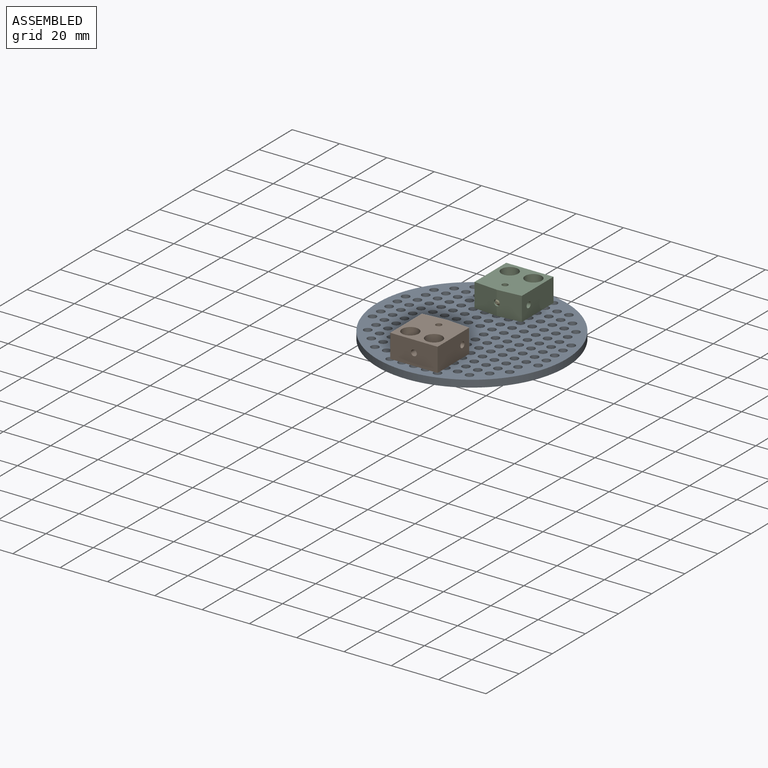
[diagram: assembled view]
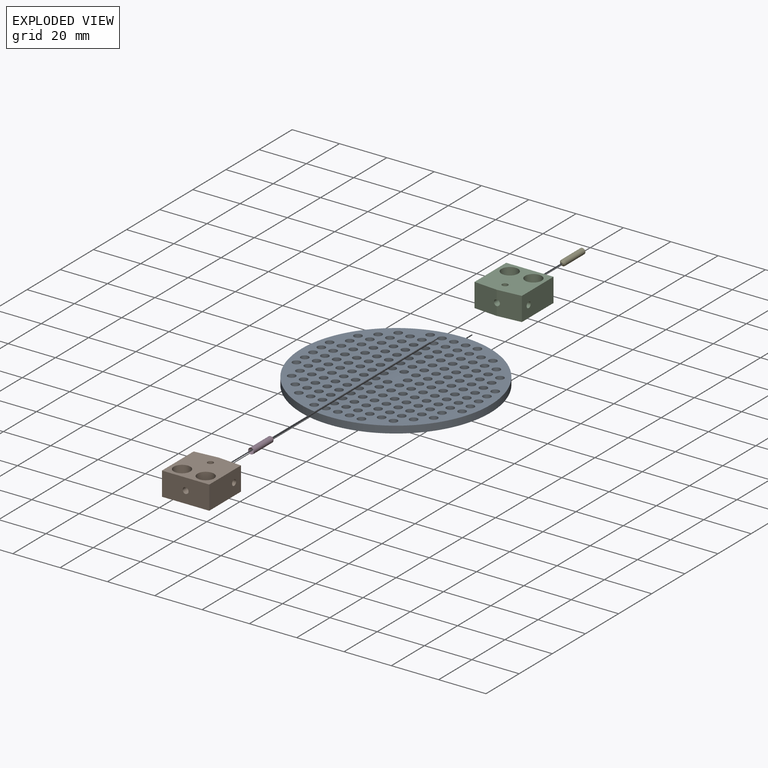
[diagram: exploded view]
GUIDED TOUR — FREECAD ASSEMBLY "PhilippsXL30_DipoleTrap"

This assembly has 5 components, labeled P0..P4 below (a component is one placed body or linked part; the same part can appear more than once), held together by 0 modeled joints plus 4 derived contact edges. A joint is a constraint between two components; its type names the relative motion it leaves free:
  CONTACT — a derived adjacency edge — the two components touch in the source model (clearance under 2% of the assembly's diagonal); it is measured from the geometry, not a modeled constraint.
Axis/direction vectors are unit vectors and 'through' points are millimeter coordinates, both in the assembly's world frame.

MATES
  1. CONTACT "contact_0_1": P0 <-> P1, contact direction (0.000, -1.000, 0.000) through (1.33, -19.44, 0.00) mm (derived from contact, not a modeled constraint)
  2. CONTACT "contact_0_2": P0 <-> P2, contact direction (0.000, 1.000, 0.000) through (-1.41, 19.71, 0.00) mm (derived from contact, not a modeled constraint)
  3. CONTACT "contact_1_3": P1 <-> P3, contact direction (0.000, 1.000, 0.000) through (1.09, -15.24, 5.00) mm (derived from contact, not a modeled constraint)
  4. CONTACT "contact_2_4": P2 <-> P4, contact direction (0.000, -1.000, 0.000) through (-1.09, 15.24, 5.05) mm (derived from contact, not a modeled constraint)

ASSEMBLY ORDER
  1. P2 — the base component [order verified]
  2. P4 [order verified]
  3. P0 [order verified]
  4. P3 [order verified]
  5. P1 [order verified]
(P3, P4 verified with a relaxed clearance tolerance: the source model stores slight part interference there.)
Order-tag legend:
  [order verified] — this step's position reverses a verified removal order: the component was checked to insert without passing through the ones already placed.

Of the 5 components, 3 carry a construction recipe — the FreeCAD feature program (sketches with constraints, then the solid features that consume them) that regenerates the part from scratch, quoted from this document or from the linked companion document it references; the rest are supplied as boundary geometry only. The tour below walks the components in assembly order: each is shown spotlighted twice — in the assembled view, then in the exploded view, where a leader line traces a displaced component back to its assembled socket (components that stay in place when exploded have no leader line; saturated green if recipe-attached, orange if geometry-only; every other component desaturated gray) — followed by its recipe or geometry summary and the mates that hold it.
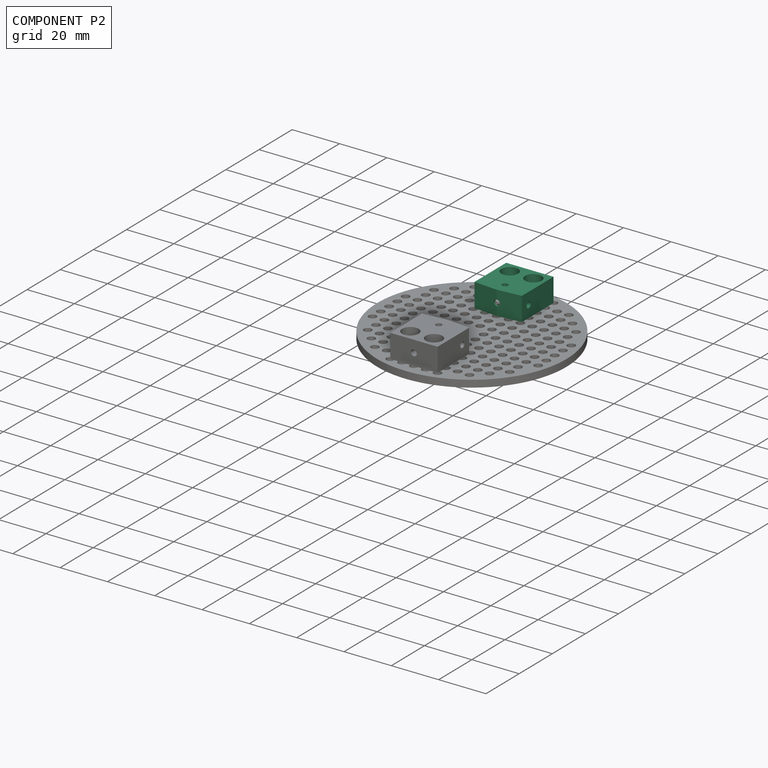
[diagram: component P2 — assembled]
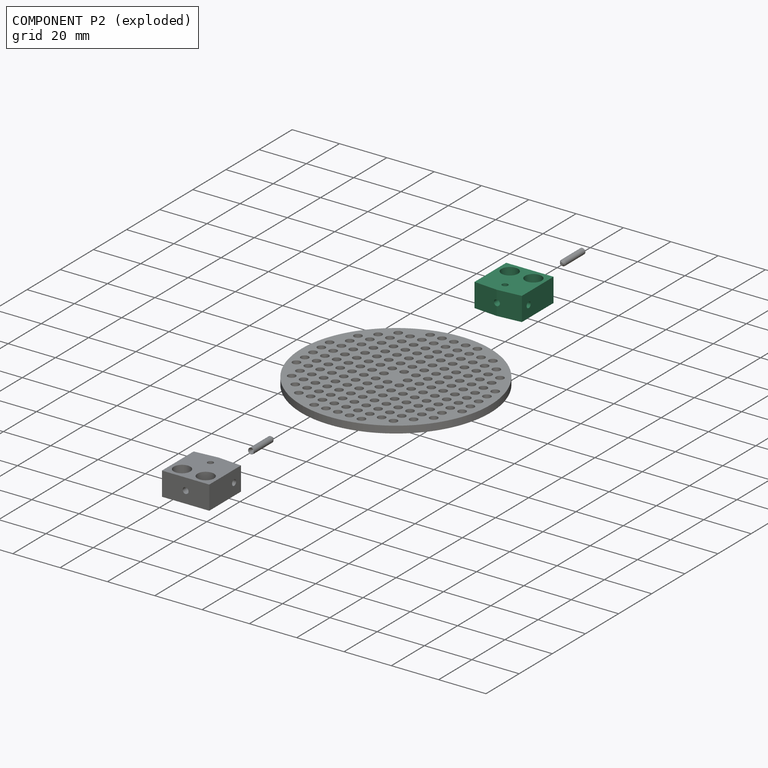
[diagram: component P2 — exploded]
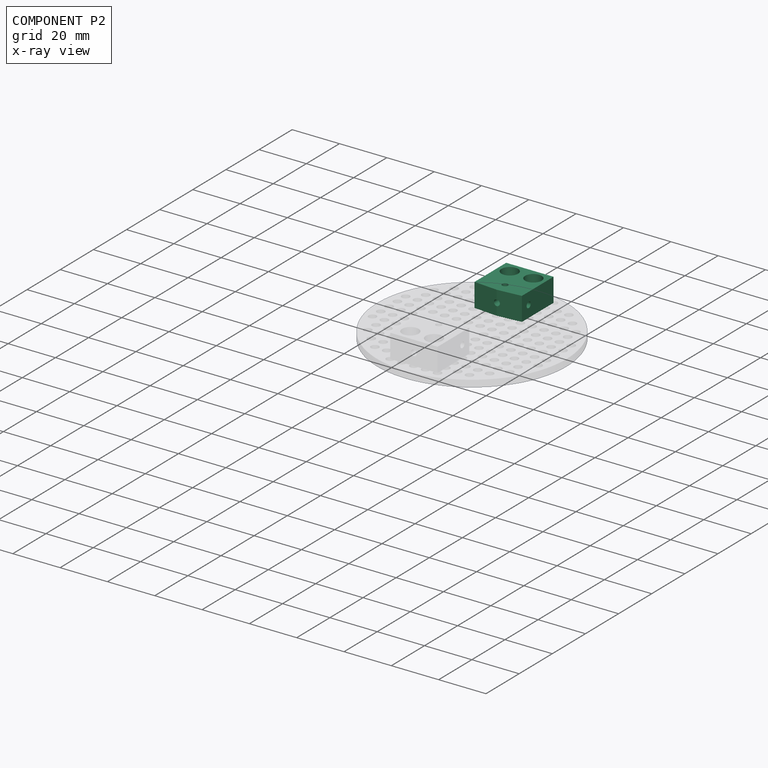
[diagram: component P2 — x-ray view]
COMPONENT P2 — same part as P1; its construction recipe is shown at P1.
Held by: resting contact with P0 (derived edge); resting contact with P4 (derived edge).
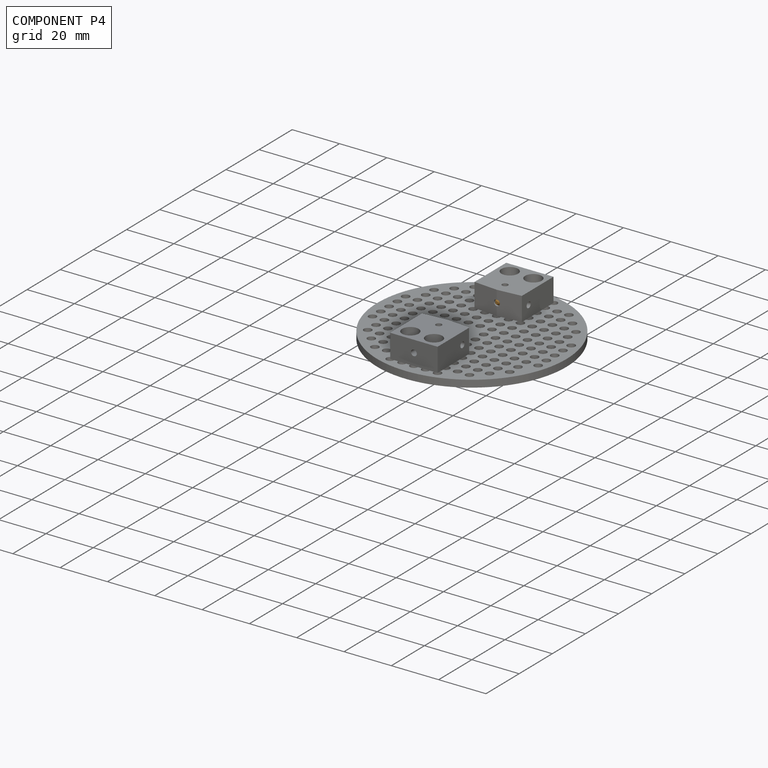
[diagram: component P4 — assembled]
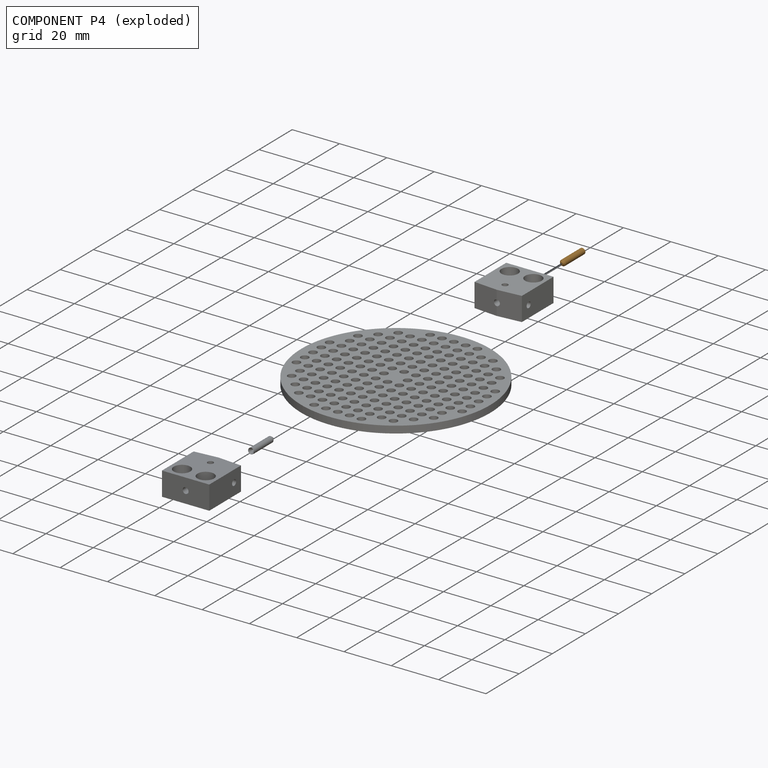
[diagram: component P4 — exploded]
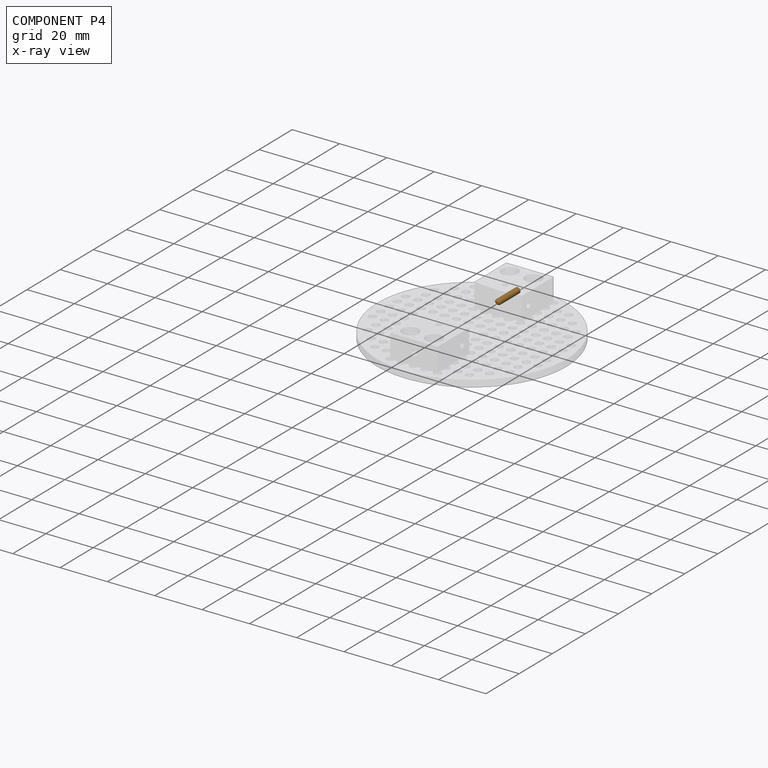
[diagram: component P4 — x-ray view]
COMPONENT P4 — geometry summary ("FiberFerrule001"; no construction recipe available for this part):
  bounding box: 12.7 x 2.5 x 2.5 mm
  tessellated surface: 2,236 triangles
  volume: 56 mm^3 (70% of its bounding box)
  symmetry: revolution-symmetric about the y axis through its bounding-box center; mirror-symmetric across its x mid-plane
Held by: resting contact with P2 (derived edge).
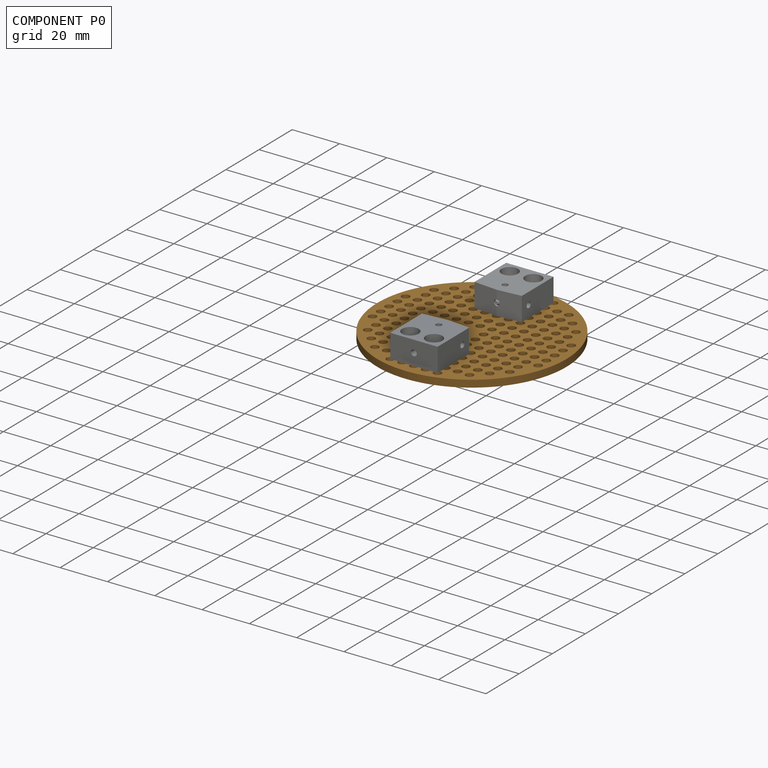
[diagram: component P0 — assembled]
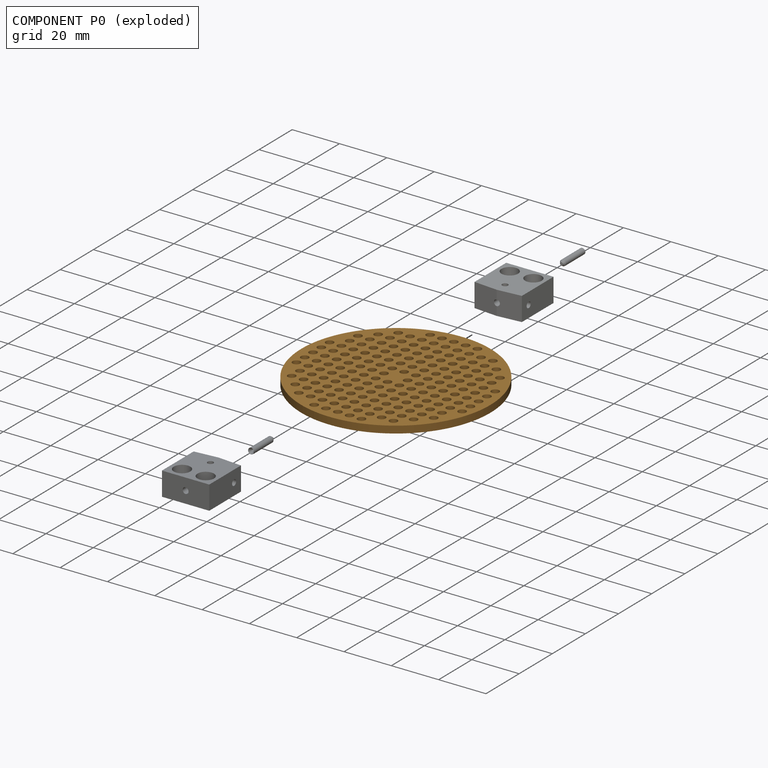
[diagram: component P0 — exploded]
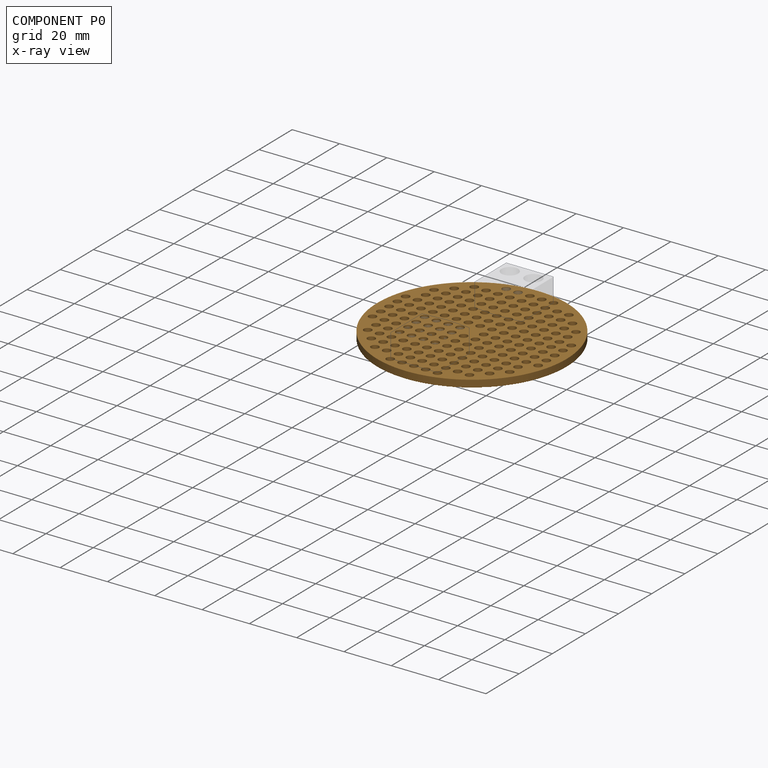
[diagram: component P0 — x-ray view]
COMPONENT P0 — geometry summary ("Breadboard"; no construction recipe available for this part):
  bounding box: 80.0 x 80.0 x 10.0 mm
  tessellated surface: 90,412 triangles
  volume: 10652 mm^3 (17% of its bounding box)
  symmetry: 4-fold rotationally symmetric about the z axis; mirror-symmetric across its x mid-plane, y mid-plane
Held by: resting contact with P1 (derived edge); resting contact with P2 (derived edge).
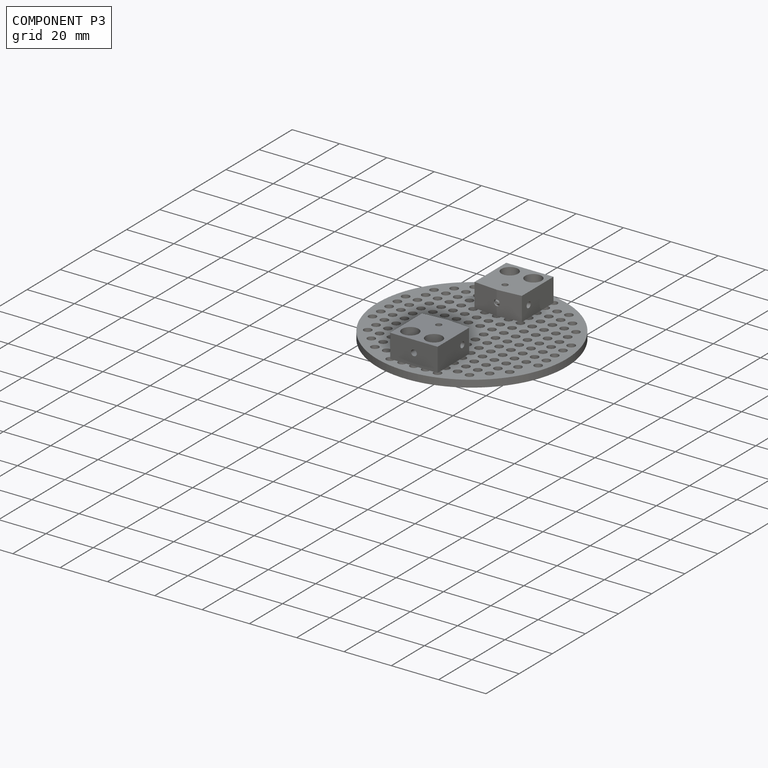
[diagram: component P3 — assembled]
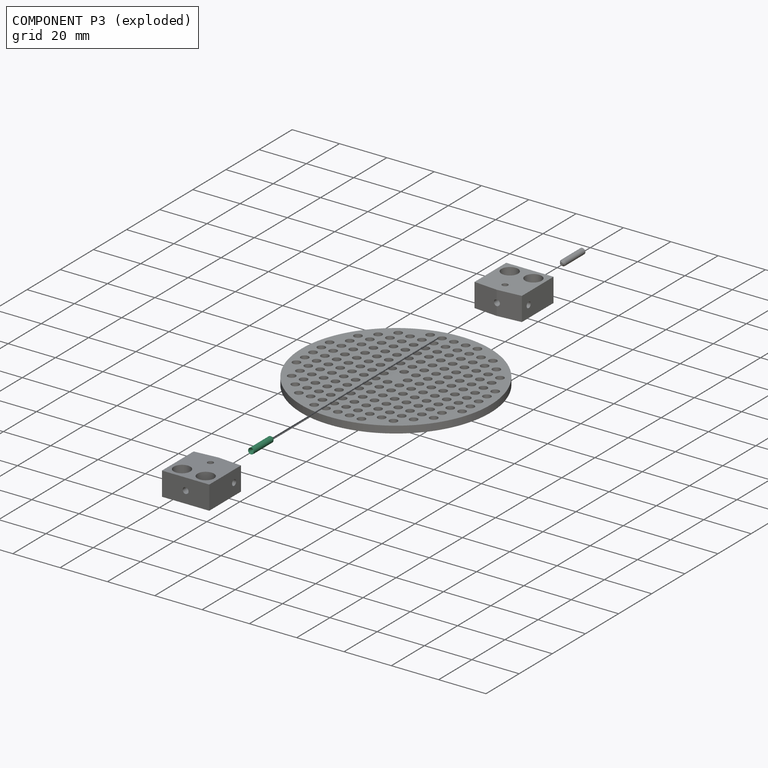
[diagram: component P3 — exploded]
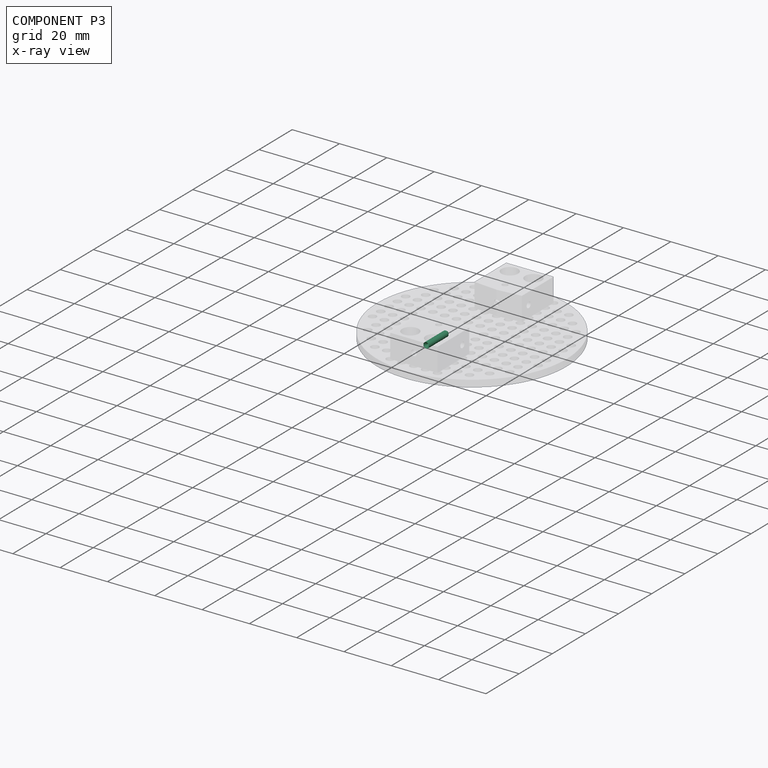
[diagram: component P3 — x-ray view]
COMPONENT P3 — recipe-attached ("FiberFerrule", a linked part whose construction recipe lives in a companion FreeCAD document of the same project; that document's serialized recipe follows).
Held by: resting contact with P1 (derived edge).
Construction recipe (the companion document, serialized — sketch geometry with constraints, then the solid features built on it; lengths are millimeters unless a unit is written):

FCSTD DOCUMENT  (FreeCAD 0.21R0.21.2)
Label: FiberFerruleParameterized
License: All rights reserved
LicenseURL: https://en.wikipedia.org/wiki/All_rights_reserved
objects: Part::Cylinder×2, Part::Cone×2, Part::MultiFuse×2, Spreadsheet::Sheet×1, Part::Cut×1
note: 7 computed .brp shape members not serialized (recipe doc carries the construction recipe); baked Part::Feature solids carry a one-line shape summary decoded from their .brp

FEATURE [Spreadsheet::Sheet] Spreadsheet  label="FerruleConfig"
  cells = A2='Ferrule OD; B2(ferrule_od)=2.5; C2='outer diameter; D2='typ. 2.5mm or 1.25mm; A3='Ferrule ID; B3(ferrule_id)=0.44; C3='Inner diameter; D3='typ. 440 um / 125um / 231 um; A4='Ferrule Length; B4(ferrule_length)=12.7; C4='Ferrule length; D4='typ 12.7mm / 10.5mm; A5='Front angle; B5(ferrule_front_angle)=35; C5='Angle on front; D5='typ 35 deg; A6='Back angle; B6(ferrule_back_angle)=35; C6='Angle on back; D6='typ 35 deg
FEATURE [Part::Cylinder] Cylinder
  Angle = 360
  AttacherType = Attacher::AttachEngine3D
  FirstAngle = 0
  Height = 11.7717
  Placement = pos=(0,0,0.928296) rot=(0,0,1;0rad)
  Radius = 1.25
  SecondAngle = 0
  expr: .Placement.Base.z = (<<FerruleConfig>>.ferrule_od - 1.2) / (2 * tan(<<FerruleConfig>>.ferrule_front_angle))
  expr: Height = <<FerruleConfig>>.ferrule_length - (<<FerruleConfig>>.ferrule_od - 1.2) / (2 * tan(<<FerruleConfig>>.ferrule_front_angle))
  expr: Radius = <<FerruleConfig>>.ferrule_od / 2
FEATURE [Part::Cylinder] Cylinder001
  Angle = 360
  AttacherType = Attacher::AttachEngine3D
  FirstAngle = 0
  Height = 12.7
  Radius = 0.22
  SecondAngle = 0
  expr: Height = <<FerruleConfig>>.ferrule_length
  expr: Radius = <<FerruleConfig>>.ferrule_id / 2
FEATURE [Part::Cone] Cone
  Angle = 360
  AttacherType = Attacher::AttachEngine3D
  Height = 0.928296
  Radius1 = 0.6
  Radius2 = 1.25
  expr: Height = (<<FerruleConfig>>.ferrule_od - 1.2) / (2 * tan(<<FerruleConfig>>.ferrule_front_angle))
  expr: Radius2 = <<FerruleConfig>>.ferrule_od / 2
FEATURE [Part::MultiFuse] Fusion
  Shapes = -> [Cylinder,Cone]
FEATURE [Part::Cone] Cone001
  Angle = 360
  AttacherType = Attacher::AttachEngine3D
  Height = 1.47099
  Placement = pos=(0,0,11.229) rot=(0,0,1;0rad)
  Radius1 = 0.22
  Radius2 = 1.25
  expr: .Placement.Base.z = <<FerruleConfig>>.ferrule_length - (<<FerruleConfig>>.ferrule_od - <<FerruleConfig>>.ferrule_id) / (2 * tan(<<FerruleConfig>>.ferrule_back_angle))
  expr: Height = (<<FerruleConfig>>.ferrule_od - <<FerruleConfig>>.ferrule_id) / (2 * tan(<<FerruleConfig>>.ferrule_back_angle))
  expr: Radius1 = <<FerruleConfig>>.ferrule_id / 2
  expr: Radius2 = <<FerruleConfig>>.ferrule_od / 2
FEATURE [Part::MultiFuse] Fusion001
  Shapes = -> [Cylinder001,Cone001]
FEATURE [Part::Cut] Cut  label="FiberFerrule"
  Base = -> Fusion
  Tool = -> Fusion001
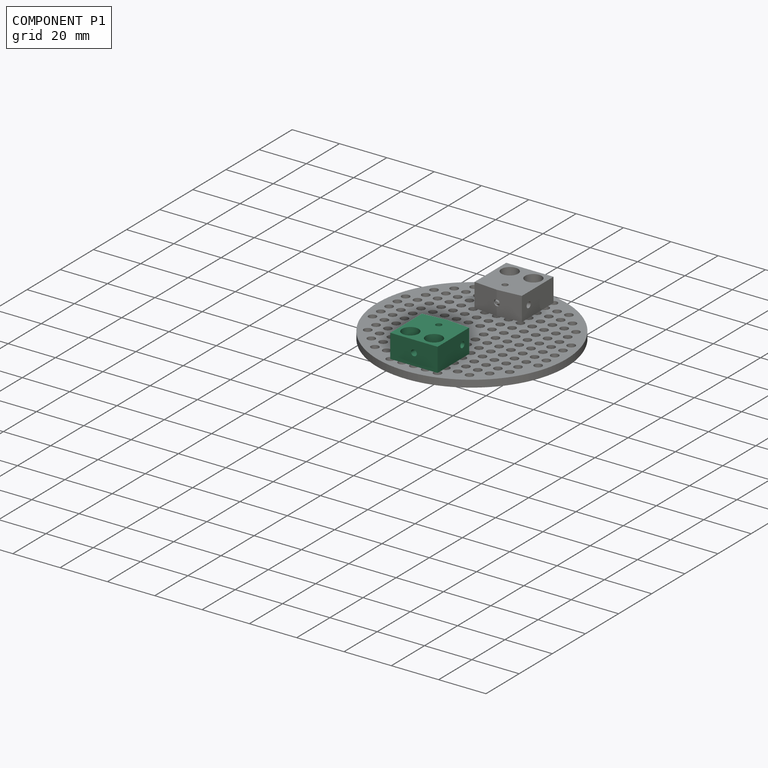
[diagram: component P1 — assembled]
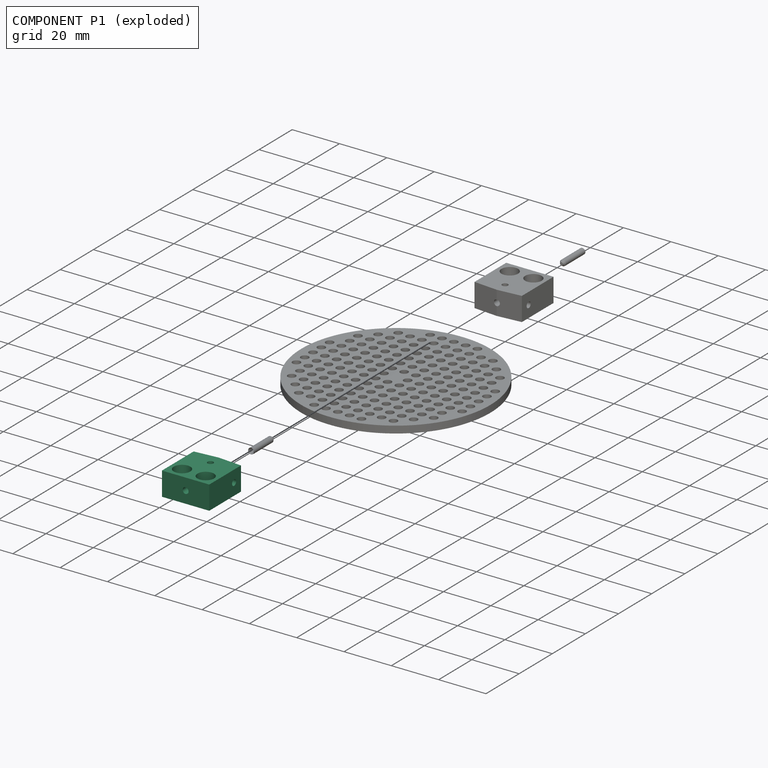
[diagram: component P1 — exploded]
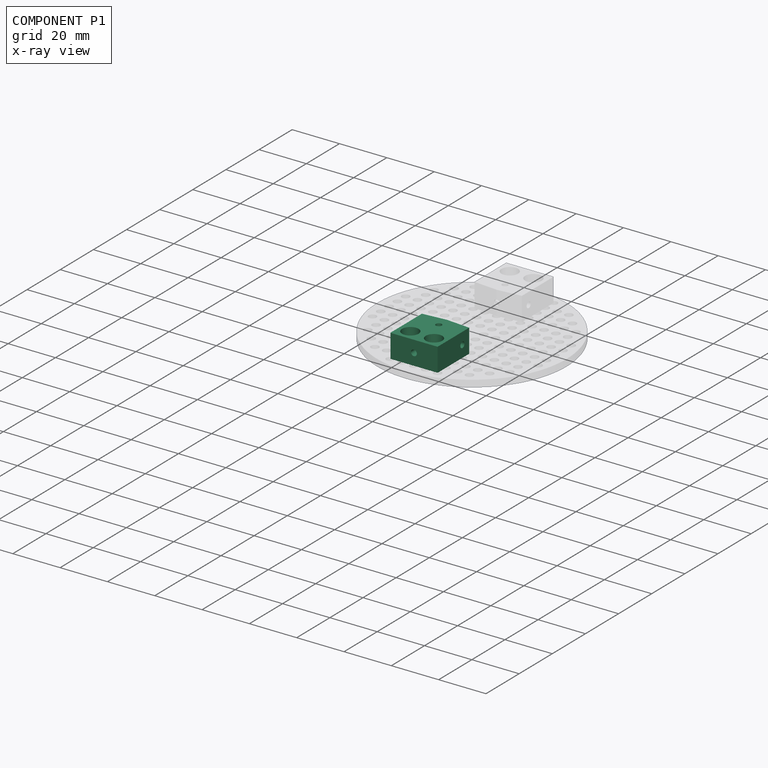
[diagram: component P1 — x-ray view]
COMPONENT P1 — recipe-attached ("FiberMount", a linked part whose construction recipe lives in a companion FreeCAD document of the same project; that document's serialized recipe follows).
Held by: resting contact with P0 (derived edge); resting contact with P3 (derived edge).
Construction recipe (the companion document, serialized — sketch geometry with constraints, then the solid features built on it; lengths are millimeters unless a unit is written):

FCSTD DOCUMENT  (FreeCAD 0.21R0.21.2)
Label: StaticFiberFerruleMount_M4
License: All rights reserved
LicenseURL: https://en.wikipedia.org/wiki/All_rights_reserved
objects: TechDraw::DrawViewDimension×23, Part::Cylinder×5, Part::Cut×5, TechDraw::DrawProjGroupItem×5, Part::MultiFuse×4, Part::Box×3, TechDraw::DrawViewPart×3, TechDraw::DrawViewSection×3, Part::FeaturePython×2, TechDraw::DrawSVGTemplate×2, TechDraw::DrawPage×2, Part::Compound×1, TechDraw::DrawProjGroup×1
note: 56 computed .brp shape members not serialized (recipe doc carries the construction recipe); baked Part::Feature solids carry a one-line shape summary decoded from their .brp

FEATURE [Part::Box] Box  label="Cube"
  AttacherType = Attacher::AttachEngine3D
  Height = 10
  Length = 20
  Placement = pos=(-10,0,0) rot=(0,0,1;0rad)
  Width = 20
FEATURE [Part::Cylinder] Cylinder
  Angle = 360
  AttacherType = Attacher::AttachEngine3D
  FirstAngle = 0
  Height = 4
  Placement = pos=(0,0,6) rot=(0,0,1;0rad)
  Radius = 3.5
  SecondAngle = 0
FEATURE [Part::Cylinder] Cylinder001
  Angle = 360
  AttacherType = Attacher::AttachEngine3D
  FirstAngle = 0
  Height = 10
  Radius = 2.15
  SecondAngle = 0
FEATURE [Part::MultiFuse] Fusion
  Placement = pos=(-5,5,0) rot=(0,0,1;0rad)
  Shapes = -> [Cylinder001,Cylinder]
FEATURE [Part::Cylinder] Cylinder002
  Angle = 360
  AttacherType = Attacher::AttachEngine3D
  FirstAngle = 0
  Height = 4
  Placement = pos=(0,0,6) rot=(0,0,1;0rad)
  Radius = 3.5
  SecondAngle = 0
FEATURE [Part::Cylinder] Cylinder003
  Angle = 360
  AttacherType = Attacher::AttachEngine3D
  FirstAngle = 0
  Height = 10
  Radius = 2.15
  SecondAngle = 0
FEATURE [Part::MultiFuse] Fusion001
  Placement = pos=(5,5,0) rot=(0,0,1;0rad)
  Shapes = -> [Cylinder003,Cylinder002]
FEATURE [Part::MultiFuse] Fusion002
  Shapes = -> [Fusion,Fusion001]
FEATURE [Part::Cut] Cut
  Base = -> Box
  Tool = -> Fusion002
FEATURE [Part::Cylinder] Cylinder004
  Angle = 360
  AttacherType = Attacher::AttachEngine3D
  FirstAngle = 0
  Height = 20
  Placement = pos=(0,0,5) rot=(1,0,0;-1.5708rad)
  Radius = 1.25
  SecondAngle = 0
FEATURE [Part::Cut] Cut001
  Base = -> Cut
  Tool = -> Cylinder004
FEATURE [Part::FeaturePython] ScrewTap  label="M3x20-ScrewTap"  # Fasteners workbench fastener (typed FeaturePython)
  Placement = pos=(10,15,5) rot=(0,1,0;1.5708rad)
  diameter = 4
  diameterCustom = 20
  invert = false
  leftHanded = false
  length = 20
  matchOuter = false
  offset = 0
  pitchCustom = 1
  thread = false
  type = 2
FEATURE [Part::FeaturePython] ScrewTap001  label="M3x20-ScrewTap001"  # Fasteners workbench fastener (typed FeaturePython)
  Placement = pos=(0,15,15) rot=(0,1,0;0rad)
  diameter = 4
  diameterCustom = 20
  invert = false
  leftHanded = false
  length = 20
  matchOuter = false
  offset = 0
  pitchCustom = 1
  thread = false
  type = 2
FEATURE [Part::Cut] Cut002
  Base = -> Cut001
  Tool = -> ScrewTap
FEATURE [Part::Cut] Cut003
  Base = -> Cut002
  Tool = -> ScrewTap001
FEATURE [Part::Box] Box001  label="Cube001"
  AttacherType = Attacher::AttachEngine3D
  Height = 10
  Length = 15
  Placement = pos=(0,20,0) rot=(0,0,1;-0.087266rad)
  Width = 5
FEATURE [Part::Box] Box002  label="Cube002"
  AttacherType = Attacher::AttachEngine3D
  Height = 10
  Length = 15
  Placement = pos=(0,20,0) rot=(0,0,-1;0.087266rad)
  Width = 5
FEATURE [Part::Compound] Compound
  Links = -> [Box002]
  Placement = pos=(0,0,10) rot=(0,1,0;3.14159rad)
FEATURE [Part::MultiFuse] Fusion003
  Shapes = -> [Compound,Box001]
FEATURE [Part::Cut] Cut004  label="FiberMount"
  Base = -> Cut003
  Tool = -> Fusion003
FEATURE [TechDraw::DrawSVGTemplate] Template
  EditableTexts = Designed_by_Name=Thomas Spielauer; FC-Date=2024-01-30; FC-SC=mm; FC-Title=M4 Fiber Mount; Subtitle=For 2.5mm Ferrules
  Height = 210
  Orientation = 1
  Template = <path>
  Width = 297
FEATURE [TechDraw::DrawProjGroupItem] ProjItem  label="Front"
  CoarseView = false
  Direction = (0,0,1)
  Focus = 100
  HardHidden = false
  IsoCount = 0
  IsoHidden = false
  IsoVisible = false
  LockPosition = true
  Perspective = false
  Rotation = 0
  RotationVector = (-1,0,0)
  Scale = 2.5
  ScaleType = 2
  ScrubCount = 0
  SeamHidden = false
  SeamVisible = false
  SmoothHidden = false
  SmoothVisible = true
  Source = -> [Cut004]
  Type = 0
  X = 0
  XDirection = (-1,0,0)
  Y = 0
FEATURE [TechDraw::DrawProjGroupItem] ProjItem001  label="Left"
  CoarseView = false
  Direction = (1,0,1e-16)
  Focus = 100
  HardHidden = false
  IsoCount = 0
  IsoHidden = false
  IsoVisible = false
  LockPosition = false
  Perspective = false
  Rotation = 0
  RotationVector = (1,0,0)
  Scale = 2.5
  ScaleType = 2
  ScrubCount = 0
  SeamHidden = false
  SeamVisible = false
  SmoothHidden = false
  SmoothVisible = true
  Source = -> [Cut004]
  Type = 1
  X = 83.8051
  XDirection = (-1e-16,0,1)
  Y = 0
FEATURE [TechDraw::DrawProjGroupItem] ProjItem002  label="Rear"
  CoarseView = false
  Direction = (0,0,-1)
  Focus = 100
  HardHidden = false
  IsoCount = 0
  IsoHidden = false
  IsoVisible = false
  LockPosition = false
  Perspective = false
  Rotation = 0
  RotationVector = (1,0,0)
  Scale = 2.5
  ScaleType = 2
  ScrubCount = 0
  SeamHidden = false
  SeamVisible = false
  SmoothHidden = false
  SmoothVisible = true
  Source = -> [Cut004]
  Type = 3
  X = 176.998
  XDirection = (1,0,0)
  Y = 0
FEATURE [TechDraw::DrawProjGroupItem] ProjItem003  label="Top"
  CoarseView = false
  Direction = (0,-1,0)
  Focus = 100
  HardHidden = false
  IsoCount = 0
  IsoHidden = false
  IsoVisible = false
  LockPosition = false
  Perspective = false
  Rotation = 0
  RotationVector = (1,0,0)
  Scale = 2.5
  ScaleType = 2
  ScrubCount = 0
  SeamHidden = false
  SeamVisible = false
  SmoothHidden = false
  SmoothVisible = true
  Source = -> [Cut004]
  Type = 4
  X = 0
  XDirection = (-1,0,0)
  Y = -69.8299
FEATURE [TechDraw::DrawProjGroupItem] ProjItem004  label="Bottom"
  CoarseView = false
  Direction = (0,1,0)
  Focus = 100
  HardHidden = false
  IsoCount = 0
  IsoHidden = false
  IsoVisible = false
  LockPosition = false
  Perspective = false
  Rotation = 0
  RotationVector = (1,0,0)
  Scale = 2.5
  ScaleType = 2
  ScrubCount = 0
  SeamHidden = false
  SeamVisible = false
  SmoothHidden = false
  SmoothVisible = true
  Source = -> [Cut004]
  Type = 5
  X = 0
  XDirection = (-1,0,0)
  Y = 66.0072
FEATURE [TechDraw::DrawProjGroup] ProjGroup
  Anchor = -> ProjItem
  AutoDistribute = false
  LockPosition = false
  ProjectionType = 0
  Rotation = 0
  Scale = 2.5
  ScaleType = 2
  Source = -> [Cut004]
  Views = -> [ProjItem,ProjItem001,ProjItem002,ProjItem003,ProjItem004]
  X = 63.5172
  Y = 109.729
  spacingX = 15
  spacingY = 15
FEATURE [TechDraw::DrawViewDimension] Dimension
  AngleOverride = false
  Arbitrary = false
  ArbitraryTolerances = false
  EqualTolerance = true
  ExtensionAngle = 0
  FormatSpec = %.2w
  FormatSpecOverTolerance = %+.2w
  FormatSpecUnderTolerance = %+.2w
  Inverted = false
  LineAngle = 0
  LockPosition = false
  MeasureType = 1
  OverTolerance = 0
  References2D = -> [ProjItem002]
  Rotation = 0
  ScaleType = 0
  TheoreticalExact = false
  Type = 1
  UnderTolerance = 0
  X = -1.08718
  Y = 38.276
FEATURE [TechDraw::DrawViewDimension] Dimension001
  AngleOverride = false
  Arbitrary = false
  ArbitraryTolerances = false
  EqualTolerance = true
  ExtensionAngle = 0
  FormatSpec = %.2w
  FormatSpecOverTolerance = %+.2w
  FormatSpecUnderTolerance = %+.2w
  Inverted = false
  LineAngle = 0
  LockPosition = false
  MeasureType = 1
  OverTolerance = 0
  References2D = -> [ProjItem002]
  Rotation = 0
  ScaleType = 0
  TheoreticalExact = false
  Type = 2
  UnderTolerance = 0
  X = 33.6541
  Y = 3.92646
FEATURE [TechDraw::DrawViewDimension] Dimension002
  AngleOverride = false
  Arbitrary = false
  ArbitraryTolerances = false
  EqualTolerance = true
  ExtensionAngle = 0
  FormatSpec = %.2w
  FormatSpecOverTolerance = %+.2w
  FormatSpecUnderTolerance = %+.2w
  Inverted = false
  LineAngle = 0
  LockPosition = false
  MeasureType = 1
  OverTolerance = 0
  References2D = -> [ProjItem002]
  Rotation = 0
  ScaleType = 0
  TheoreticalExact = false
  Type = 1
  UnderTolerance = 0
  X = -19.3984
  Y = 49.6787
FEATURE [TechDraw::DrawViewDimension] Dimension003
  AngleOverride = false
  Arbitrary = false
  ArbitraryTolerances = false
  EqualTolerance = true
  ExtensionAngle = 0
  FormatSpec = %.2w
  FormatSpecOverTolerance = %+.2w
  FormatSpecUnderTolerance = %+.2w
  Inverted = false
  LineAngle = 0
  LockPosition = false
  MeasureType = 1
  OverTolerance = 0
  References2D = -> [ProjItem002]
  Rotation = 0
  ScaleType = 0
  TheoreticalExact = false
  Type = 1
  UnderTolerance = 0
  X = 18.4123
  Y = 48.3541
FEATURE [TechDraw::DrawViewDimension] Dimension004
  AngleOverride = false
  Arbitrary = false
  ArbitraryTolerances = false
  EqualTolerance = true
  ExtensionAngle = 0
  FormatSpec = %.2w
  FormatSpecOverTolerance = %+.2w
  FormatSpecUnderTolerance = %+.2w
  Inverted = false
  LineAngle = 0
  LockPosition = false
  MeasureType = 1
  OverTolerance = 0
  References2D = -> [ProjItem002]
  Rotation = 0
  ScaleType = 0
  TheoreticalExact = false
  Type = 2
  UnderTolerance = 0
  X = -36.9072
  Y = 21.9842
FEATURE [TechDraw::DrawViewDimension] Dimension005
  AngleOverride = false
  Arbitrary = false
  ArbitraryTolerances = false
  EqualTolerance = true
  ExtensionAngle = 0
  FormatSpec = %.2w
  FormatSpecOverTolerance = %+.2w
  FormatSpecUnderTolerance = %+.2w
  Inverted = false
  LineAngle = 0
  LockPosition = false
  MeasureType = 1
  OverTolerance = 0
  References2D = -> [ProjItem002]
  Rotation = 0
  ScaleType = 0
  TheoreticalExact = false
  Type = 2
  UnderTolerance = 0
  X = -49.4824
  Y = 5.98178
FEATURE [TechDraw::DrawViewDimension] Dimension006
  AngleOverride = false
  Arbitrary = false
  ArbitraryTolerances = false
  EqualTolerance = true
  ExtensionAngle = 0
  FormatSpec = %.2w
  FormatSpecOverTolerance = %+.2w
  FormatSpecUnderTolerance = %+.2w
  Inverted = false
  LineAngle = 0
  LockPosition = false
  MeasureType = 1
  OverTolerance = 0
  References2D = -> [ProjItem001]
  Rotation = 0
  ScaleType = 0
  TheoreticalExact = false
  Type = 2
  UnderTolerance = 0
  X = 20.9282
  Y = -0.08017
FEATURE [TechDraw::DrawViewDimension] Dimension007
  AngleOverride = false
  Arbitrary = false
  ArbitraryTolerances = false
  EqualTolerance = true
  ExtensionAngle = 0
  FormatSpec = %.2w
  FormatSpecOverTolerance = %+.2w
  FormatSpecUnderTolerance = %+.2w
  Inverted = false
  LineAngle = 0
  LockPosition = false
  MeasureType = 1
  OverTolerance = 0
  References2D = -> [ProjItem001]
  Rotation = 0
  ScaleType = 0
  TheoreticalExact = false
  Type = 1
  UnderTolerance = 0
  X = 1.11941
  Y = 39.7819
FEATURE [TechDraw::DrawViewDimension] Dimension008
  AngleOverride = false
  Arbitrary = false
  ArbitraryTolerances = false
  EqualTolerance = true
  ExtensionAngle = 0
  FormatSpec = %.2w
  FormatSpecOverTolerance = %+.2w
  FormatSpecUnderTolerance = %+.2w
  Inverted = false
  LineAngle = 0
  LockPosition = false
  MeasureType = 1
  OverTolerance = 0
  References2D = -> [ProjItem]
  Rotation = 0
  ScaleType = 0
  TheoreticalExact = false
  Type = 6
  UnderTolerance = 0
  X = 17.4114
  Y = -11.6712
FEATURE [TechDraw::DrawViewDimension] Dimension009
  AngleOverride = false
  Arbitrary = false
  ArbitraryTolerances = false
  EqualTolerance = true
  ExtensionAngle = 0
  FormatSpec = ⌀%.2w
  FormatSpecOverTolerance = %+.2w
  FormatSpecUnderTolerance = %+.2w
  Inverted = false
  LineAngle = 0
  LockPosition = false
  MeasureType = 1
  OverTolerance = 0
  References2D = -> [ProjItem]
  Rotation = 0
  ScaleType = 0
  TheoreticalExact = false
  Type = 5
  UnderTolerance = 0
  X = 34.847
  Y = 32.1835
FEATURE [TechDraw::DrawViewDimension] Dimension010
  AngleOverride = false
  Arbitrary = false
  ArbitraryTolerances = false
  EqualTolerance = true
  ExtensionAngle = 0
  FormatSpec = ⌀%.2w
  FormatSpecOverTolerance = %+.2w
  FormatSpecUnderTolerance = %+.2w
  Inverted = false
  LineAngle = 0
  LockPosition = false
  MeasureType = 1
  OverTolerance = 0
  References2D = -> [ProjItem]
  Rotation = 0
  ScaleType = 0
  TheoreticalExact = false
  Type = 5
  UnderTolerance = 0
  X = 42.735
  Y = 24.4512
FEATURE [TechDraw::DrawViewDimension] Dimension011
  AngleOverride = false
  Arbitrary = false
  ArbitraryTolerances = false
  EqualTolerance = true
  ExtensionAngle = 0
  FormatSpec = ⌀%.2w
  FormatSpecOverTolerance = %+.2w
  FormatSpecUnderTolerance = %+.2w
  Inverted = false
  LineAngle = 0
  LockPosition = false
  MeasureType = 1
  OverTolerance = 0
  References2D = -> [ProjItem003]
  Rotation = 0
  ScaleType = 0
  TheoreticalExact = false
  Type = 5
  UnderTolerance = 0
  X = 36.0608
  Y = 7.78296
FEATURE [TechDraw::DrawViewDimension] Dimension012
  AngleOverride = false
  Arbitrary = false
  ArbitraryTolerances = false
  EqualTolerance = true
  ExtensionAngle = 0
  FormatSpec = ⌀%.2w (M3)
  FormatSpecOverTolerance = %+.2w
  FormatSpecUnderTolerance = %+.2w
  Inverted = false
  LineAngle = 0
  LockPosition = false
  MeasureType = 1
  OverTolerance = 0
  References2D = -> [ProjItem]
  Rotation = 0
  ScaleType = 0
  TheoreticalExact = false
  Type = 5
  UnderTolerance = 0
  X = 47.6967
  Y = -20.8245
FEATURE [TechDraw::DrawViewDimension] Dimension013
  AngleOverride = false
  Arbitrary = false
  ArbitraryTolerances = false
  EqualTolerance = true
  ExtensionAngle = 0
  FormatSpec = ⌀%.2w (M3)
  FormatSpecOverTolerance = %+.2w
  FormatSpecUnderTolerance = %+.2w
  Inverted = false
  LineAngle = 0
  LockPosition = false
  MeasureType = 1
  OverTolerance = 0
  References2D = -> [ProjItem001]
  Rotation = 0
  ScaleType = 0
  TheoreticalExact = false
  Type = 5
  UnderTolerance = 0
  X = -33.134
  Y = 3.74181
FEATURE [TechDraw::DrawViewDimension] Dimension014
  AngleOverride = false
  Arbitrary = false
  ArbitraryTolerances = false
  EqualTolerance = true
  ExtensionAngle = 0
  FormatSpec = %.2w
  FormatSpecOverTolerance = %+.2w
  FormatSpecUnderTolerance = %+.2w
  Inverted = false
  LineAngle = 0
  LockPosition = false
  MeasureType = 1
  OverTolerance = 0
  References2D = -> [ProjItem004]
  Rotation = 0
  ScaleType = 0
  TheoreticalExact = false
  Type = 1
  UnderTolerance = 0
  X = 10.9437
  Y = -18.4908
FEATURE [TechDraw::DrawPage] Page
  KeepUpdated = true
  NextBalloonIndex = 1
  ProjectionType = 0
  Template = -> Template
  Views = -> [ProjGroup,Dimension,Dimension001,Dimension002,Dimension003,Dimension004,Dimension005,Dimension006,Dimension007,Dimension008,Dimension009,Dimension010,Dimension011,Dimension012,Dimension013,Dimension014]
FEATURE [TechDraw::DrawSVGTemplate] Template001
  EditableTexts = Designed_by_Name=Thomas Spielauer; FC-Date=2024-01-30; FC-SC=mm; FC-SH=2/2; FC-Title=M4 Fiber Mount; Subtitle=For 2.5mm fiber ferrules
  Height = 210
  Orientation = 1
  Template = <path>
  Width = 297
FEATURE [TechDraw::DrawViewPart] View
  CoarseView = false
  Direction = (0,0,1)
  Focus = 100
  HardHidden = false
  IsoCount = 0
  IsoHidden = false
  IsoVisible = false
  LockPosition = false
  Perspective = false
  Rotation = 0
  Scale = 2
  ScaleType = 2
  ScrubCount = 0
  SeamHidden = false
  SeamVisible = false
  SmoothHidden = false
  SmoothVisible = true
  Source = -> [Cut004]
  X = 49.0155
  XDirection = (-1,0,0)
  Y = 162
FEATURE [TechDraw::DrawViewSection] SectionView  label="Section  - "
  BaseView = -> View
  CoarseView = false
  CutSurfaceDisplay = 2
  Direction = (1,1e-16,0)
  FileGeomPattern = <path>
  FileHatchPattern = <path>
  Focus = 100
  FuseBeforeCut = false
  HardHidden = false
  HatchOffset = (0,0,0)
  HatchRotation = 0
  HatchScale = 1
  IsoCount = 0
  IsoHidden = false
  IsoVisible = false
  LockPosition = false
  NameGeomPattern = Diamond
  Perspective = false
  Rotation = -90
  Scale = 2
  ScaleType = 2
  ScrubCount = 0
  SeamHidden = false
  SeamVisible = false
  SectionDirection = 4
  SectionNormal = (1,1e-16,0)
  SectionOrigin = (0,10,5)
  SmoothHidden = false
  SmoothVisible = true
  Source = -> [Cut004]
  TrimAfterCut = false
  X = 98.3829
  XDirection = (-1e-16,1,0)
  Y = 161.597
FEATURE [TechDraw::DrawViewPart] View001
  CoarseView = false
  Direction = (0,0,1)
  Focus = 100
  HardHidden = false
  IsoCount = 0
  IsoHidden = false
  IsoVisible = false
  LockPosition = false
  Perspective = false
  Rotation = 0
  Scale = 2
  ScaleType = 2
  ScrubCount = 0
  SeamHidden = false
  SeamVisible = false
  SmoothHidden = false
  SmoothVisible = true
  Source = -> [Cut004]
  X = 168.995
  XDirection = (-1,0,0)
  Y = 161.465
FEATURE [TechDraw::DrawViewSection] SectionView001  label="Section  - 001"
  BaseView = -> View001
  CoarseView = false
  CutSurfaceDisplay = 2
  Direction = (1,1e-16,0)
  FileGeomPattern = <path>
  FileHatchPattern = <path>
  Focus = 100
  FuseBeforeCut = false
  HardHidden = false
  HatchOffset = (0,0,0)
  HatchRotation = 0
  HatchScale = 1
  IsoCount = 0
  IsoHidden = false
  IsoVisible = false
  LockPosition = false
  NameGeomPattern = Diamond
  Perspective = false
  Rotation = -90
  Scale = 2
  ScaleType = 2
  ScrubCount = 0
  SeamHidden = false
  SeamVisible = false
  SectionDirection = 4
  SectionNormal = (1,1e-16,0)
  SectionOrigin = (5,10,5)
  SmoothHidden = false
  SmoothVisible = true
  Source = -> [Cut004]
  TrimAfterCut = false
  X = 225.041
  XDirection = (-1e-16,1,0)
  Y = 158.119
FEATURE [TechDraw::DrawViewDimension] Dimension015
  AngleOverride = false
  Arbitrary = false
  ArbitraryTolerances = false
  EqualTolerance = true
  ExtensionAngle = 0
  FormatSpec = %.2w
  FormatSpecOverTolerance = %+.2w
  FormatSpecUnderTolerance = %+.2w
  Inverted = false
  LineAngle = 0
  LockPosition = false
  MeasureType = 1
  OverTolerance = 0
  References2D = -> [SectionView]
  Rotation = 0
  ScaleType = 0
  TheoreticalExact = false
  Type = 1
  UnderTolerance = 0
  X = 9.95348
  Y = -24.9456
FEATURE [TechDraw::DrawViewDimension] Dimension016
  AngleOverride = false
  Arbitrary = false
  ArbitraryTolerances = false
  EqualTolerance = true
  ExtensionAngle = 0
  FormatSpec = %.2w (M3)
  FormatSpecOverTolerance = %+.2w
  FormatSpecUnderTolerance = %+.2w
  Inverted = false
  LineAngle = 0
  LockPosition = false
  MeasureType = 1
  OverTolerance = 0
  References2D = -> [SectionView]
  Rotation = 0
  ScaleType = 0
  TheoreticalExact = false
  Type = 2
  UnderTolerance = 0
  X = 17.8961
  Y = 1.78628
FEATURE [TechDraw::DrawViewDimension] Dimension017
  AngleOverride = false
  Arbitrary = false
  ArbitraryTolerances = false
  EqualTolerance = true
  ExtensionAngle = 0
  FormatSpec = %.2w
  FormatSpecOverTolerance = %+.2w
  FormatSpecUnderTolerance = %+.2w
  Inverted = false
  LineAngle = 0
  LockPosition = false
  MeasureType = 1
  OverTolerance = 0
  References2D = -> [SectionView001]
  Rotation = 0
  ScaleType = 0
  TheoreticalExact = false
  Type = 2
  UnderTolerance = 0
  X = 19.2955
  Y = 12.763
FEATURE [TechDraw::DrawViewDimension] Dimension018
  AngleOverride = false
  Arbitrary = false
  ArbitraryTolerances = false
  EqualTolerance = true
  ExtensionAngle = 0
  FormatSpec = %.2w
  FormatSpecOverTolerance = %+.2w
  FormatSpecUnderTolerance = %+.2w
  Inverted = false
  LineAngle = 0
  LockPosition = false
  MeasureType = 1
  OverTolerance = 0
  References2D = -> [SectionView001]
  Rotation = 0
  ScaleType = 0
  TheoreticalExact = false
  Type = 2
  UnderTolerance = 0
  X = -21.1185
  Y = 11.8913
FEATURE [TechDraw::DrawViewDimension] Dimension019
  AngleOverride = false
  Arbitrary = false
  ArbitraryTolerances = false
  EqualTolerance = true
  ExtensionAngle = 0
  FormatSpec = %.2w
  FormatSpecOverTolerance = %+.2w
  FormatSpecUnderTolerance = %+.2w
  Inverted = false
  LineAngle = 0
  LockPosition = false
  MeasureType = 1
  OverTolerance = 0
  References2D = -> [SectionView001]
  Rotation = 0
  ScaleType = 0
  TheoreticalExact = false
  Type = 1
  UnderTolerance = 0
  X = 5.85417
  Y = 33.4173
FEATURE [TechDraw::DrawViewDimension] Dimension020
  AngleOverride = false
  Arbitrary = false
  ArbitraryTolerances = false
  EqualTolerance = true
  ExtensionAngle = 0
  FormatSpec = %.2w
  FormatSpecOverTolerance = %+.2w
  FormatSpecUnderTolerance = %+.2w
  Inverted = false
  LineAngle = 0
  LockPosition = false
  MeasureType = 1
  OverTolerance = 0
  References2D = -> [SectionView001]
  Rotation = 0
  ScaleType = 0
  TheoreticalExact = false
  Type = 1
  UnderTolerance = 0
  X = -4.51158
  Y = 40.6578
FEATURE [TechDraw::DrawViewPart] View002
  CoarseView = false
  Direction = (0,0,1)
  Focus = 100
  HardHidden = false
  IsoCount = 0
  IsoHidden = false
  IsoVisible = false
  LockPosition = false
  Perspective = false
  Rotation = 90
  Scale = 2
  ScaleType = 2
  ScrubCount = 0
  SeamHidden = false
  SeamVisible = false
  SmoothHidden = false
  SmoothVisible = true
  Source = -> [Cut004]
  X = 44.9676
  XDirection = (-1,0,0)
  Y = 66.078
FEATURE [TechDraw::DrawViewSection] SectionView002  label="Section  - 002"
  BaseView = -> View002
  CoarseView = false
  CutSurfaceDisplay = 2
  Direction = (-1e-16,-1,0)
  FileGeomPattern = <path>
  FileHatchPattern = <path>
  Focus = 100
  FuseBeforeCut = false
  HardHidden = false
  HatchOffset = (0,0,0)
  HatchRotation = 0
  HatchScale = 1
  IsoCount = 0
  IsoHidden = false
  IsoVisible = false
  LockPosition = false
  NameGeomPattern = Diamond
  Perspective = false
  Rotation = 90
  Scale = 2
  ScaleType = 2
  ScrubCount = 0
  SeamHidden = false
  SeamVisible = false
  SectionDirection = 4
  SectionNormal = (-1e-16,-1,0)
  SectionOrigin = (0,15,5)
  SmoothHidden = false
  SmoothVisible = true
  Source = -> [Cut004]
  TrimAfterCut = false
  X = 99.4341
  XDirection = (-1,1e-16,0)
  Y = 66.7295
FEATURE [TechDraw::DrawViewDimension] Dimension021
  AngleOverride = false
  Arbitrary = false
  ArbitraryTolerances = false
  EqualTolerance = true
  ExtensionAngle = 0
  FormatSpec = %.2w (M3)
  FormatSpecOverTolerance = %+.2w
  FormatSpecUnderTolerance = %+.2w
  Inverted = false
  LineAngle = 0
  LockPosition = false
  MeasureType = 1
  OverTolerance = 0
  References2D = -> [SectionView002]
  Rotation = 0
  ScaleType = 0
  TheoreticalExact = false
  Type = 1
  UnderTolerance = 0
  X = 6.54939
  Y = 38.4283
FEATURE [TechDraw::DrawViewDimension] Dimension022
  AngleOverride = false
  Arbitrary = false
  ArbitraryTolerances = false
  EqualTolerance = true
  ExtensionAngle = 0
  FormatSpec = %.2w (M3)
  FormatSpecOverTolerance = %+.2w
  FormatSpecUnderTolerance = %+.2w
  Inverted = false
  LineAngle = 0
  LockPosition = false
  MeasureType = 1
  OverTolerance = 0
  References2D = -> [SectionView002]
  Rotation = 0
  ScaleType = 0
  TheoreticalExact = false
  Type = 2
  UnderTolerance = 0
  X = 32.8643
  Y = 22.8736
FEATURE [TechDraw::DrawPage] Page001
  KeepUpdated = true
  NextBalloonIndex = 1
  ProjectionType = 0
  Template = -> Template001
  Views = -> [View,SectionView,View001,SectionView001,Dimension015,Dimension016,Dimension017,Dimension018,Dimension019,Dimension020,View002,SectionView002,Dimension021,Dimension022]
note: 8 file-system paths scrubbed to <path> (originals preserved in the JSON sidecar)
PROVENANCE & LICENSES
Assembly and component geometry: a FreeCAD (.FCStd) document from a public repository crawl; components, placements and joints were extracted with FreeCAD and each solid tessellated.
Construction recipes: the document's own serialized feature recipes (and, for linked parts, the recipes of companion documents from the same project).
License: bsd.
Joints: native FreeCAD joints and A2plus constraints are mapped to standard mate types; edges marked 'derived from contact' connect touching components and are measured from the geometry, not modeled.
Verification: 3 of this assembly's 5 components carry a construction recipe (3 from linked companion documents in the same project); the rest are geometry-only. Every component's tessellation passed the extraction mesh gates (mesh-volume checksum against the B-rep where available, bounding-box inflation <= 2%).
Renders: orthographic iso camera (az 35 / el 25); the floor grid conveys scale (grid pitch printed in each image; no ruler). In the exploded view each component is displaced by its stored offset vector: the offsets alone carry the explosion direction (mate normal/axis signs are not orientation cues and do not encode it), and separation distances are assigned per mate-chain, not proportionally to assembly-order depth.
